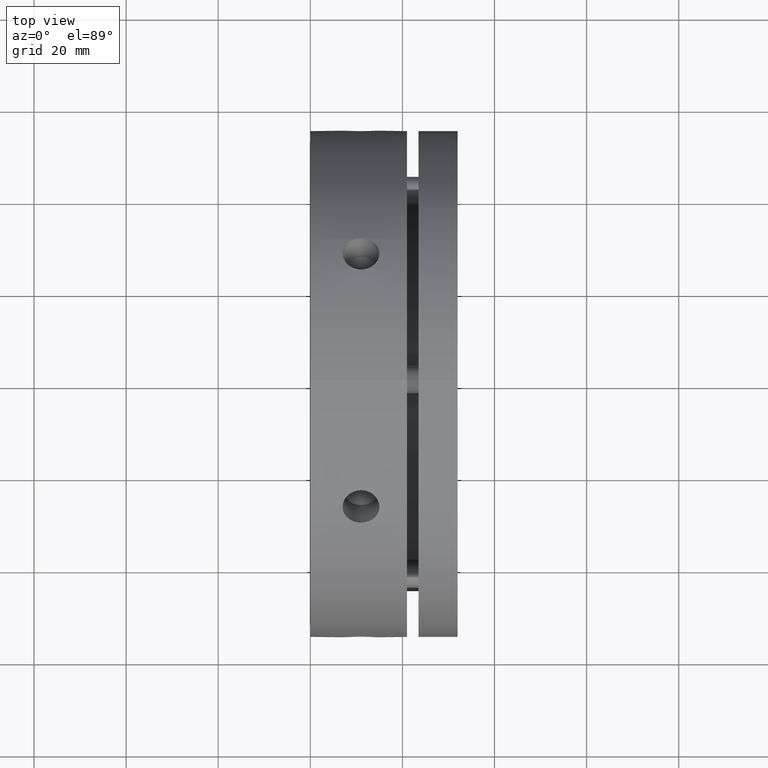
[diagram: clean part render]
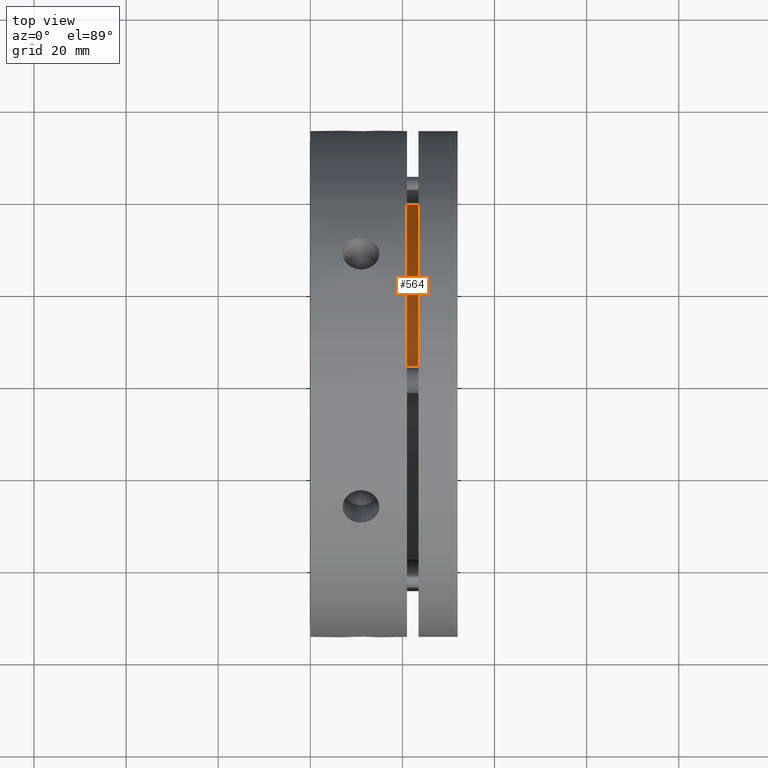
[diagram: same view with one face highlighted and labeled with its STEP entity id]
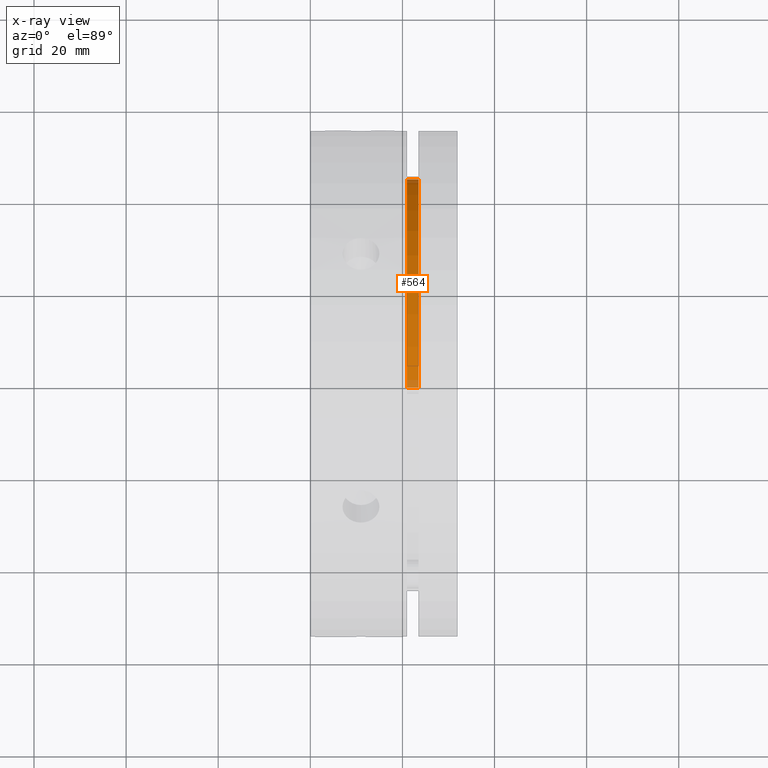
[diagram: x-ray of the same camera — body ghosted, the highlighted face saturated]
A machine part, top view. The second image highlights one B-rep face of the part: STEP entity #564.
The next image is the same camera in x-ray: the body ghosted, the highlighted face saturated — about 5% of this face is hidden behind the body in this view.
In plain terms, the highlighted cylindrical surface (partial cylindrical patch) has radius 44.5 mm, axis along (-1, 0, 0).
Its self-contained STEP definition (entity closure, byte-faithful):
#5 = VERTEX_POINT ( 'NONE', #4701 ) ;
#61 = VERTEX_POINT ( 'NONE', #4757 ) ;
#87 = VERTEX_POINT ( 'NONE', #4782 ) ;
#88 = VERTEX_POINT ( 'NONE', #4783 ) ;
#307 = EDGE_CURVE ( 'NONE', #61, #5, #2647, .T. ) ;
#315 = EDGE_CURVE ( 'NONE', #61, #87, #2658, .T. ) ;
#318 = EDGE_CURVE ( 'NONE', #88, #87, #2664, .T. ) ;
#320 = EDGE_CURVE ( 'NONE', #5, #88, #2666, .T. ) ;
#464 = AXIS2_PLACEMENT_3D ( 'NONE', #4007, #4005, #4003 ) ;
#564 = ADVANCED_FACE ( 'NONE', ( #793 ), #800, .T. ) ;
#793 = FACE_OUTER_BOUND ( 'NONE', #2521, .T. ) ;
#800 = CYLINDRICAL_SURFACE ( 'NONE', #464, 44.49999999999999300 ) ;
#2257 = AXIS2_PLACEMENT_3D ( 'NONE', #3191, #3192, #3193 ) ;
#2262 = AXIS2_PLACEMENT_3D ( 'NONE', #3164, #3165, #3166 ) ;
#2521 = EDGE_LOOP ( 'NONE', ( #4274, #4250, #4222, #4264 ) ) ;
#2647 = CIRCLE ( 'NONE', #2262, 44.49999999999999300 ) ;
#2658 = LINE ( 'NONE', #3176, #2663 ) ;
#2663 = VECTOR ( 'NONE', #3184, 1000.000000000000000 ) ;
#2664 = CIRCLE ( 'NONE', #2257, 44.49999999999999300 ) ;
#2666 = LINE ( 'NONE', #3195, #2671 ) ;
#2671 = VECTOR ( 'NONE', #3190, 1000.000000000000000 ) ;
#3164 = CARTESIAN_POINT ( 'NONE',  ( 23.49999999999999300, 0.0000000000000000000, 0.0000000000000000000 ) ) ;
#3165 = DIRECTION ( 'NONE',  ( -1.000000000000000000, 0.0000000000000000000, 0.0000000000000000000 ) ) ;
#3166 = DIRECTION ( 'NONE',  ( 0.0000000000000000000, 0.0000000000000000000, 1.000000000000000000 ) ) ;
#3176 = CARTESIAN_POINT ( 'NONE',  ( 22.24999999999999300, 0.0000000000000000000, 44.49999999999999300 ) ) ;
#3184 = DIRECTION ( 'NONE',  ( -1.000000000000000000, 0.0000000000000000000, 0.0000000000000000000 ) ) ;
#3190 = DIRECTION ( 'NONE',  ( -1.000000000000000000, 0.0000000000000000000, 0.0000000000000000000 ) ) ;
#3191 = CARTESIAN_POINT ( 'NONE',  ( 20.99999999999999300, 0.0000000000000000000, 0.0000000000000000000 ) ) ;
#3192 = DIRECTION ( 'NONE',  ( 1.000000000000000000, -0.0000000000000000000, -0.0000000000000000000 ) ) ;
#3193 = DIRECTION ( 'NONE',  ( 0.0000000000000000000, 0.0000000000000000000, 1.000000000000000000 ) ) ;
#3195 = CARTESIAN_POINT ( 'NONE',  ( 22.24999999999999300, 5.449678256205720400E-015, -44.49999999999999300 ) ) ;
#4003 = DIRECTION ( 'NONE',  ( 0.0000000000000000000, 0.0000000000000000000, 1.000000000000000000 ) ) ;
#4005 = DIRECTION ( 'NONE',  ( -1.000000000000000000, 0.0000000000000000000, 0.0000000000000000000 ) ) ;
#4007 = CARTESIAN_POINT ( 'NONE',  ( 22.24999999999999300, 0.0000000000000000000, 0.0000000000000000000 ) ) ;
#4222 = ORIENTED_EDGE ( 'NONE', *, *, #318, .T. ) ;
#4250 = ORIENTED_EDGE ( 'NONE', *, *, #320, .T. ) ;
#4264 = ORIENTED_EDGE ( 'NONE', *, *, #315, .F. ) ;
#4274 = ORIENTED_EDGE ( 'NONE', *, *, #307, .T. ) ;
#4701 = CARTESIAN_POINT ( 'NONE',  ( 23.49999999999999300, 5.449678256205720400E-015, -44.49999999999999300 ) ) ;
#4757 = CARTESIAN_POINT ( 'NONE',  ( 23.49999999999999300, 0.0000000000000000000, 44.49999999999999300 ) ) ;
#4782 = CARTESIAN_POINT ( 'NONE',  ( 20.99999999999999300, 0.0000000000000000000, 44.49999999999999300 ) ) ;
#4783 = CARTESIAN_POINT ( 'NONE',  ( 20.99999999999999300, 5.449678256205720400E-015, -44.49999999999999300 ) ) ;